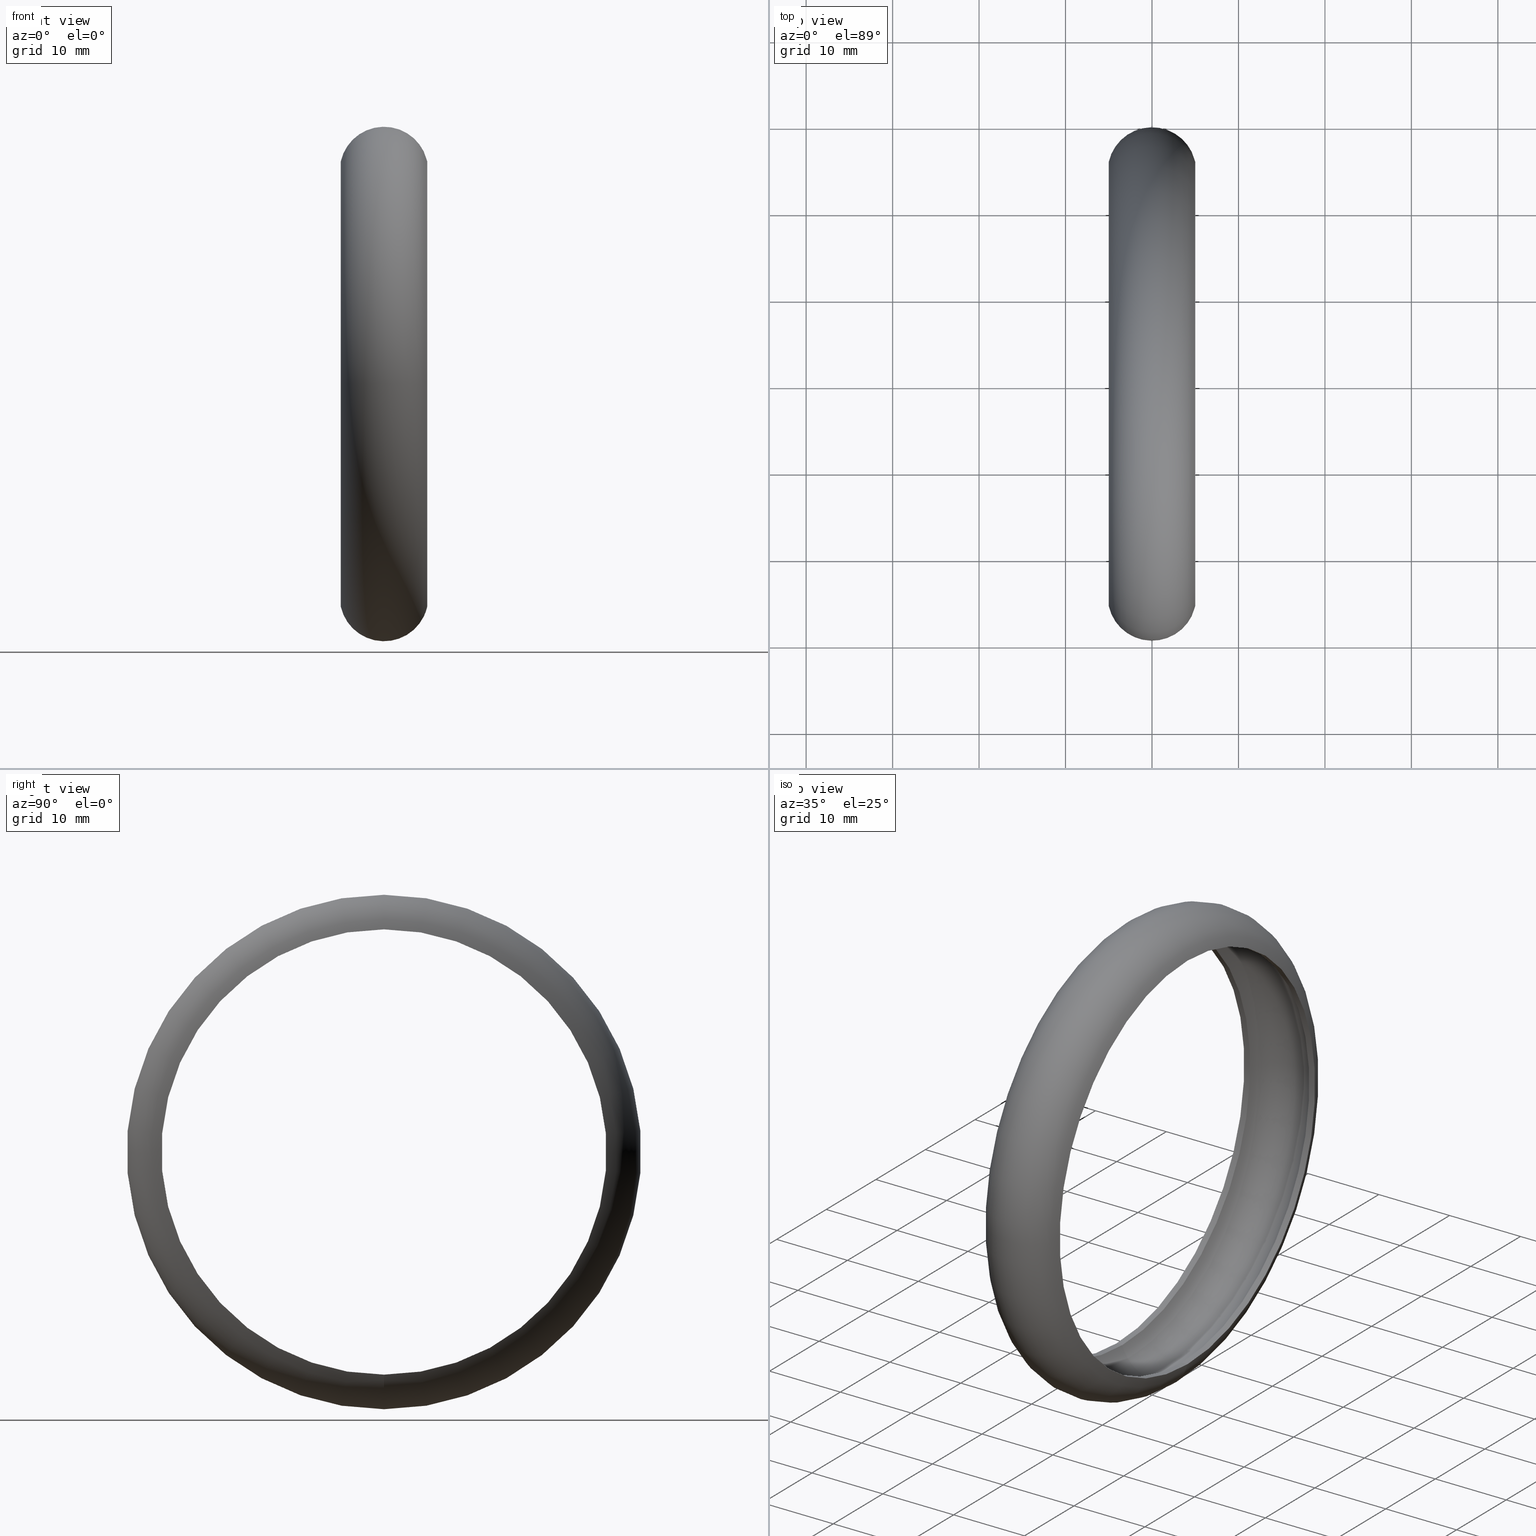
[diagram: canonical four-view strip — front | top / right | iso, engineering-drawing reading convention]
A machine part, canonical four-view strip (front | top / right | iso — engineering-drawing reading convention). The complete STEP part file that produces these views, byte-faithful:
ISO-10303-21;
HEADER;
FILE_DESCRIPTION(('STEP AP214'),
    '1');
FILE_NAME('���. KRT736',
    '2014-09-29T21:31:44',
    ('������ ������ ��������'),
    ('���������� ������'),
    'ASCON STEP Converter 1.3',
    'ASCON Math Kernel',
    '');
/*�� �������� ���������:

��� 8 919 123 02 50

info@stairs.center*/
FILE_SCHEMA(('AUTOMOTIVE_DESIGN { 1 0 10303 214 3 1 1}'));
ENDSEC;

DATA;
#1=SHAPE_REPRESENTATION('NONE',(#2),#6);
#2=AXIS2_PLACEMENT_3D('',#3,#4,#5);
#3=CARTESIAN_POINT('',(0.,0.,0.));
#4=DIRECTION('',(0.,0.,1.));
#5=DIRECTION('',(1.,0.,0.));
#6=(GEOMETRIC_REPRESENTATION_CONTEXT(3)GLOBAL_UNCERTAINTY_ASSIGNED_CONTEXT((#8))
GLOBAL_UNIT_ASSIGNED_CONTEXT((#7,#9,#10))REPRESENTATION_CONTEXT('NONE','NONE'));
#7=(LENGTH_UNIT()NAMED_UNIT(*)SI_UNIT(.MILLI.,.METRE.));
#8=UNCERTAINTY_MEASURE_WITH_UNIT(LENGTH_MEASURE(1.E-005),#7,'NONE','NONE');
#9=(NAMED_UNIT(*)PLANE_ANGLE_UNIT()SI_UNIT($,.RADIAN.));
#10=(NAMED_UNIT(*)SI_UNIT($,.STERADIAN.)SOLID_ANGLE_UNIT());
#11=SHAPE_DEFINITION_REPRESENTATION(#12,#1);
#12=PRODUCT_DEFINITION_SHAPE('NONE','NONE',#13);
#13=PRODUCT_DEFINITION('','UNSPECIFIED',#14,#22);
#14=PRODUCT_DEFINITION_FORMATION_WITH_SPECIFIED_SOURCE('ANY','UNSPECIFIED',#15,.NOT_KNOWN.);
#15=PRODUCT('',' ������','�� �������� ���������:

��� 8 919 123 02 50

info@stairs.center',
(#25));
#16=PERSON('UNSPECIFIED','������ ������ ��������','UNSPECIFIED',('UNSPECIFIED'),
('UNSPECIFIED'),('UNSPECIFIED'));
#17=ORGANIZATION('UNSPECIFIED','���������� ������','UNSPECIFIED');
#18=PERSON_AND_ORGANIZATION(#16,#17);
#19=PERSON_AND_ORGANIZATION_ROLE('design_owner');
#20=CC_DESIGN_PERSON_AND_ORGANIZATION_ASSIGNMENT(#18,#19,(#15));
#21=PRODUCT_RELATED_PRODUCT_CATEGORY('detail','',(#15));
#22=DESIGN_CONTEXT('detailed design',#23,'design');
#23=APPLICATION_CONTEXT('configuration controlled 3d designs of mechanical parts and assemblies');
#24=APPLICATION_PROTOCOL_DEFINITION('international standard','automotive_design',
2011,#23);
#25=MECHANICAL_CONTEXT('NONE',#23,'mechanical');
#26=CC_DESIGN_DATE_AND_TIME_ASSIGNMENT(#27,#31,(#13));
#27=DATE_AND_TIME(#28,#29);
#28=CALENDAR_DATE(0,1,1);
#29=LOCAL_TIME(0,0,0.,#30);
#30=COORDINATED_UNIVERSAL_TIME_OFFSET(0,0,.AHEAD.);
#31=DATE_TIME_ROLE('creation_date');
#32=CC_DESIGN_APPROVAL(#33,(#13));
#33=APPROVAL(#34,'UNSPECIFIED');
#34=APPROVAL_STATUS('not_yet_approved');
#35=APPROVAL_DATE_TIME(#36,#33);
#36=DATE_AND_TIME(#37,#38);
#37=CALENDAR_DATE(0,1,1);
#38=LOCAL_TIME(0,0,0.,#39);
#39=COORDINATED_UNIVERSAL_TIME_OFFSET(0,0,.AHEAD.);
#40=DERIVED_UNIT((#44,#41));
#41=DERIVED_UNIT_ELEMENT(#42,-1.);
#42=VOLUME_UNIT(#43);
#43=DIMENSIONAL_EXPONENTS(3.,0.,0.,0.,0.,0.,0.);
#44=(NAMED_UNIT($)MASS_UNIT()SI_UNIT($,.GRAM.));
#45=MANIFOLD_SOLID_BREP('',#46);
#46=CLOSED_SHELL('',(#58,#67,#76,#85));
#47=COLOUR_RGB($,0.564705882352941,0.564705882352941,0.564705882352941);
#48=FILL_AREA_STYLE_COLOUR($,#47);
#49=FILL_AREA_STYLE($,(#48));
#50=SURFACE_STYLE_FILL_AREA(#49);
#51=SURFACE_SIDE_STYLE('',(#50));
#52=SURFACE_STYLE_USAGE(.BOTH.,#51);
#53=PRESENTATION_STYLE_ASSIGNMENT((#52));
#54=MECHANICAL_DESIGN_GEOMETRIC_PRESENTATION_REPRESENTATION('NONE',(#55,#66,#75,
#84,#93),#6);
#55=STYLED_ITEM('',(#53),#45);
#56=ADVANCED_BREP_SHAPE_REPRESENTATION('NONE',(#45),#6);
#57=SHAPE_REPRESENTATION_RELATIONSHIP('','',#1,#56);
#58=ADVANCED_FACE('',(#94,#96),#98,.F.);
#59=COLOUR_RGB($,0.564705882352941,0.564705882352941,0.564705882352941);
#60=FILL_AREA_STYLE_COLOUR($,#59);
#61=FILL_AREA_STYLE($,(#60));
#62=SURFACE_STYLE_FILL_AREA(#61);
#63=SURFACE_SIDE_STYLE('',(#62));
#64=SURFACE_STYLE_USAGE(.BOTH.,#63);
#65=PRESENTATION_STYLE_ASSIGNMENT((#64));
#66=STYLED_ITEM('',(#65),#58);
#67=ADVANCED_FACE('',(#103,#105),#107,.F.);
#68=COLOUR_RGB($,0.564705882352941,0.564705882352941,0.564705882352941);
#69=FILL_AREA_STYLE_COLOUR($,#68);
#70=FILL_AREA_STYLE($,(#69));
#71=SURFACE_STYLE_FILL_AREA(#70);
#72=SURFACE_SIDE_STYLE('',(#71));
#73=SURFACE_STYLE_USAGE(.BOTH.,#72);
#74=PRESENTATION_STYLE_ASSIGNMENT((#73));
#75=STYLED_ITEM('',(#74),#67);
#76=ADVANCED_FACE('',(#112,#114),#116,.T.);
#77=COLOUR_RGB($,0.564705882352941,0.564705882352941,0.564705882352941);
#78=FILL_AREA_STYLE_COLOUR($,#77);
#79=FILL_AREA_STYLE($,(#78));
#80=SURFACE_STYLE_FILL_AREA(#79);
#81=SURFACE_SIDE_STYLE('',(#80));
#82=SURFACE_STYLE_USAGE(.BOTH.,#81);
#83=PRESENTATION_STYLE_ASSIGNMENT((#82));
#84=STYLED_ITEM('',(#83),#76);
#85=ADVANCED_FACE('',(#121,#123),#125,.F.);
#86=COLOUR_RGB($,0.564705882352941,0.564705882352941,0.564705882352941);
#87=FILL_AREA_STYLE_COLOUR($,#86);
#88=FILL_AREA_STYLE($,(#87));
#89=SURFACE_STYLE_FILL_AREA(#88);
#90=SURFACE_SIDE_STYLE('',(#89));
#91=SURFACE_STYLE_USAGE(.BOTH.,#90);
#92=PRESENTATION_STYLE_ASSIGNMENT((#91));
#93=STYLED_ITEM('',(#92),#85);
#94=FACE_OUTER_BOUND('',#95,.T.);
#95=EDGE_LOOP('',(#130));
#96=FACE_OUTER_BOUND('',#97,.T.);
#97=EDGE_LOOP('',(#131));
#98=TOROIDAL_SURFACE('',#99,24.625,4.32499998807907);
#99=AXIS2_PLACEMENT_3D('',#100,#101,#102);
#100=CARTESIAN_POINT('',(1.77635683940025E-015,0.,0.));
#101=DIRECTION('',(1.,0.,0.));
#102=DIRECTION('',(0.,0.,-1.));
#103=FACE_OUTER_BOUND('',#104,.T.);
#104=EDGE_LOOP('',(#132));
#105=FACE_OUTER_BOUND('',#106,.T.);
#106=EDGE_LOOP('',(#133));
#107=CYLINDRICAL_SURFACE('',#108,25.75);
#108=AXIS2_PLACEMENT_3D('',#109,#110,#111);
#109=CARTESIAN_POINT('',(5.,0.,0.));
#110=DIRECTION('',(1.,0.,0.));
#111=DIRECTION('',(0.,0.,-1.));
#112=FACE_OUTER_BOUND('',#113,.T.);
#113=EDGE_LOOP('',(#134));
#114=FACE_OUTER_BOUND('',#115,.T.);
#115=EDGE_LOOP('',(#135));
#116=TOROIDAL_SURFACE('',#117,24.625,5.125);
#117=AXIS2_PLACEMENT_3D('',#118,#119,#120);
#118=CARTESIAN_POINT('',(1.77635683940025E-015,0.,0.));
#119=DIRECTION('',(1.,0.,0.));
#120=DIRECTION('',(0.,0.,-1.));
#121=FACE_OUTER_BOUND('',#122,.T.);
#122=EDGE_LOOP('',(#136));
#123=FACE_OUTER_BOUND('',#124,.T.);
#124=EDGE_LOOP('',(#137));
#125=CYLINDRICAL_SURFACE('',#126,25.75);
#126=AXIS2_PLACEMENT_3D('',#127,#128,#129);
#127=CARTESIAN_POINT('',(-4.17612259121831,0.,0.));
#128=DIRECTION('',(1.,0.,0.));
#129=DIRECTION('',(0.,0.,-1.));
#130=ORIENTED_EDGE('',*,*,#138,.T.);
#131=ORIENTED_EDGE('',*,*,#139,.F.);
#132=ORIENTED_EDGE('',*,*,#140,.T.);
#133=ORIENTED_EDGE('',*,*,#138,.F.);
#134=ORIENTED_EDGE('',*,*,#140,.F.);
#135=ORIENTED_EDGE('',*,*,#141,.T.);
#136=ORIENTED_EDGE('',*,*,#139,.T.);
#137=ORIENTED_EDGE('',*,*,#141,.F.);
#138=EDGE_CURVE('',#142,#142,#143,.T.);
#139=EDGE_CURVE('',#144,#144,#145,.T.);
#140=EDGE_CURVE('',#146,#146,#147,.T.);
#141=EDGE_CURVE('',#148,#148,#149,.T.);
#142=VERTEX_POINT('',#150);
#143=CIRCLE('',#151,25.75);
#144=VERTEX_POINT('',#155);
#145=CIRCLE('',#156,25.75);
#146=VERTEX_POINT('',#160);
#147=CIRCLE('',#161,25.75);
#148=VERTEX_POINT('',#165);
#149=CIRCLE('',#166,25.75);
#150=CARTESIAN_POINT('',(4.17612259121832,0.,-25.75));
#151=AXIS2_PLACEMENT_3D('',#152,#153,#154);
#152=CARTESIAN_POINT('',(4.17612259121832,0.,0.));
#153=DIRECTION('',(1.,0.,0.));
#154=DIRECTION('',(0.,0.,-1.));
#155=CARTESIAN_POINT('',(-4.17612259121831,0.,-25.75));
#156=AXIS2_PLACEMENT_3D('',#157,#158,#159);
#157=CARTESIAN_POINT('',(-4.17612259121831,0.,0.));
#158=DIRECTION('',(1.,0.,0.));
#159=DIRECTION('',(0.,0.,-1.));
#160=CARTESIAN_POINT('',(5.,0.,-25.75));
#161=AXIS2_PLACEMENT_3D('',#162,#163,#164);
#162=CARTESIAN_POINT('',(5.,0.,0.));
#163=DIRECTION('',(1.,0.,0.));
#164=DIRECTION('',(0.,0.,-1.));
#165=CARTESIAN_POINT('',(-5.,0.,-25.75));
#166=AXIS2_PLACEMENT_3D('',#167,#168,#169);
#167=CARTESIAN_POINT('',(-5.,0.,0.));
#168=DIRECTION('',(1.,0.,0.));
#169=DIRECTION('',(0.,0.,-1.));
ENDSEC;
END-ISO-10303-21;
